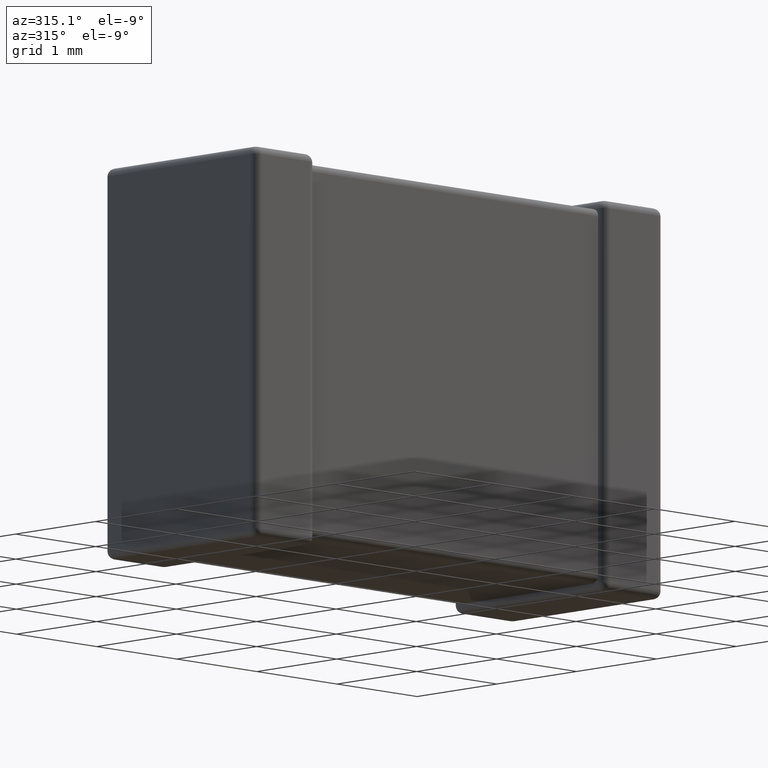
[diagram: clean part render]
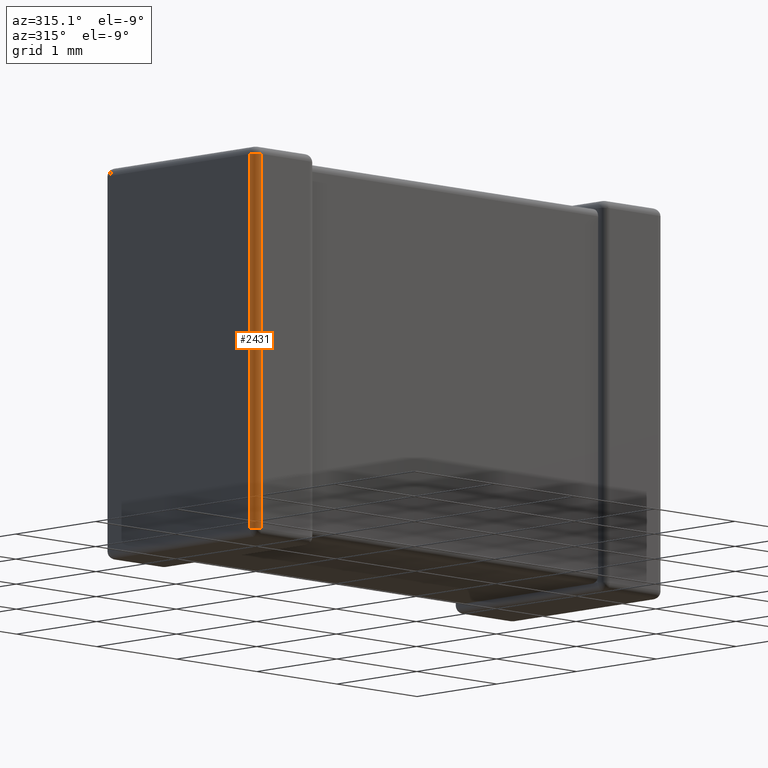
[diagram: same view with one face highlighted and labeled with its STEP entity id]
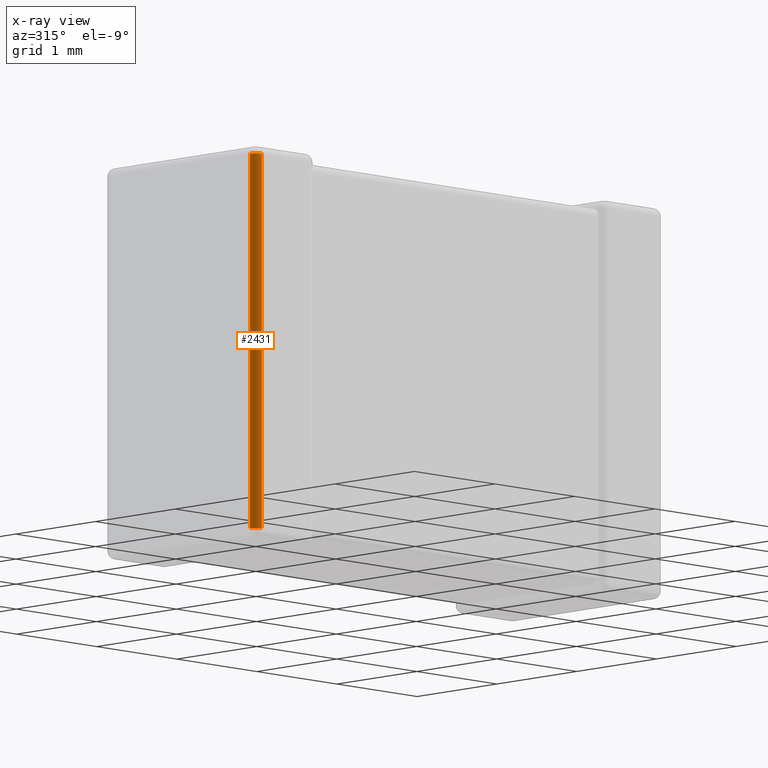
[diagram: x-ray of the same camera — body ghosted, the highlighted face saturated]
A machine part, auxiliary view. The second image highlights one B-rep face of the part: STEP entity #2431.
The next image is the same camera in x-ray: the body ghosted, the highlighted face saturated — about 0% of this face is hidden behind the body in this view.
In plain terms, the highlighted cylindrical surface (edge-blend (fillet) strip) has radius 0.0728 mm, axis along (0, 0, 1).
Its self-contained STEP definition (entity closure, byte-faithful):
#701 = ORIENTED_EDGE ( 'NONE', *, *, #2133, .F. ) ;
#750 = LINE ( 'NONE', #3311, #4268 ) ;
#1075 = FACE_OUTER_BOUND ( 'NONE', #2010, .T. ) ;
#1087 = EDGE_CURVE ( 'NONE', #2188, #4143, #4349, .T. ) ;
#1200 = VECTOR ( 'NONE', #3623, 1000.000000000000000 ) ;
#1329 = DIRECTION ( 'NONE',  ( 0.000000000000000000, 0.000000000000000000, 1.000000000000000000 ) ) ;
#1416 = EDGE_CURVE ( 'NONE', #2711, #1537, #750, .T. ) ;
#1495 = DIRECTION ( 'NONE',  ( 0.000000000000000000, 0.000000000000000000, -1.000000000000000000 ) ) ;
#1537 = VERTEX_POINT ( 'NONE', #3470 ) ;
#1720 = ORIENTED_EDGE ( 'NONE', *, *, #1087, .F. ) ;
#1726 = ORIENTED_EDGE ( 'NONE', *, *, #3895, .F. ) ;
#1825 = CARTESIAN_POINT ( 'NONE',  ( 0.07279999999999960114, 0.000000000000000000, -0.07280000000000000360 ) ) ;
#1834 = DIRECTION ( 'NONE',  ( 1.000000000000000000, 0.000000000000000000, 0.000000000000000000 ) ) ;
#2010 = EDGE_LOOP ( 'NONE', ( #701, #1720, #1726, #2565 ) ) ;
#2066 = CARTESIAN_POINT ( 'NONE',  ( 0.07279999999999960114, 0.07280000000000000360, -3.427200000000000024 ) ) ;
#2090 = AXIS2_PLACEMENT_3D ( 'NONE', #2066, #2873, #4370 ) ;
#2133 = EDGE_CURVE ( 'NONE', #4143, #2711, #2533, .T. ) ;
#2148 = CARTESIAN_POINT ( 'NONE',  ( 0.000000000000000000, 0.07280000000000000360, 0.000000000000000000 ) ) ;
#2188 = VERTEX_POINT ( 'NONE', #2506 ) ;
#2404 = CARTESIAN_POINT ( 'NONE',  ( 0.07280000000000000360, 0.07280000000000000360, -0.07280000000000000360 ) ) ;
#2431 = ADVANCED_FACE ( 'NONE', ( #1075 ), #4098, .T. ) ;
#2506 = CARTESIAN_POINT ( 'NONE',  ( 0.000000000000000000, 0.07280000000000000360, -3.427200000000000024 ) ) ;
#2533 = CIRCLE ( 'NONE', #3846, 0.07280000000000000360 ) ;
#2565 = ORIENTED_EDGE ( 'NONE', *, *, #1416, .F. ) ;
#2711 = VERTEX_POINT ( 'NONE', #1825 ) ;
#2873 = DIRECTION ( 'NONE',  ( -0.000000000000000000, -0.000000000000000000, -1.000000000000000000 ) ) ;
#3311 = CARTESIAN_POINT ( 'NONE',  ( 0.07279999999999960114, 0.000000000000000000, -3.500000000000000000 ) ) ;
#3470 = CARTESIAN_POINT ( 'NONE',  ( 0.07279999999999960114, 0.000000000000000000, -3.427200000000000024 ) ) ;
#3485 = AXIS2_PLACEMENT_3D ( 'NONE', #4421, #3673, #1834 ) ;
#3623 = DIRECTION ( 'NONE',  ( -0.000000000000000000, -0.000000000000000000, 1.000000000000000000 ) ) ;
#3673 = DIRECTION ( 'NONE',  ( 0.000000000000000000, 0.000000000000000000, 1.000000000000000000 ) ) ;
#3846 = AXIS2_PLACEMENT_3D ( 'NONE', #2404, #1329, #3986 ) ;
#3895 = EDGE_CURVE ( 'NONE', #1537, #2188, #4112, .T. ) ;
#3986 = DIRECTION ( 'NONE',  ( 1.000000000000000000, 0.000000000000000000, 0.000000000000000000 ) ) ;
#4098 = CYLINDRICAL_SURFACE ( 'NONE', #3485, 0.07280000000000000360 ) ;
#4112 = CIRCLE ( 'NONE', #2090, 0.07280000000000000360 ) ;
#4143 = VERTEX_POINT ( 'NONE', #4657 ) ;
#4268 = VECTOR ( 'NONE', #1495, 1000.000000000000000 ) ;
#4349 = LINE ( 'NONE', #2148, #1200 ) ;
#4370 = DIRECTION ( 'NONE',  ( -1.000000000000000000, 0.000000000000000000, 0.000000000000000000 ) ) ;
#4421 = CARTESIAN_POINT ( 'NONE',  ( 0.07279999999999960114, 0.07280000000000000360, 0.000000000000000000 ) ) ;
#4657 = CARTESIAN_POINT ( 'NONE',  ( 0.000000000000000000, 0.07280000000000000360, -0.07280000000000000360 ) ) ;